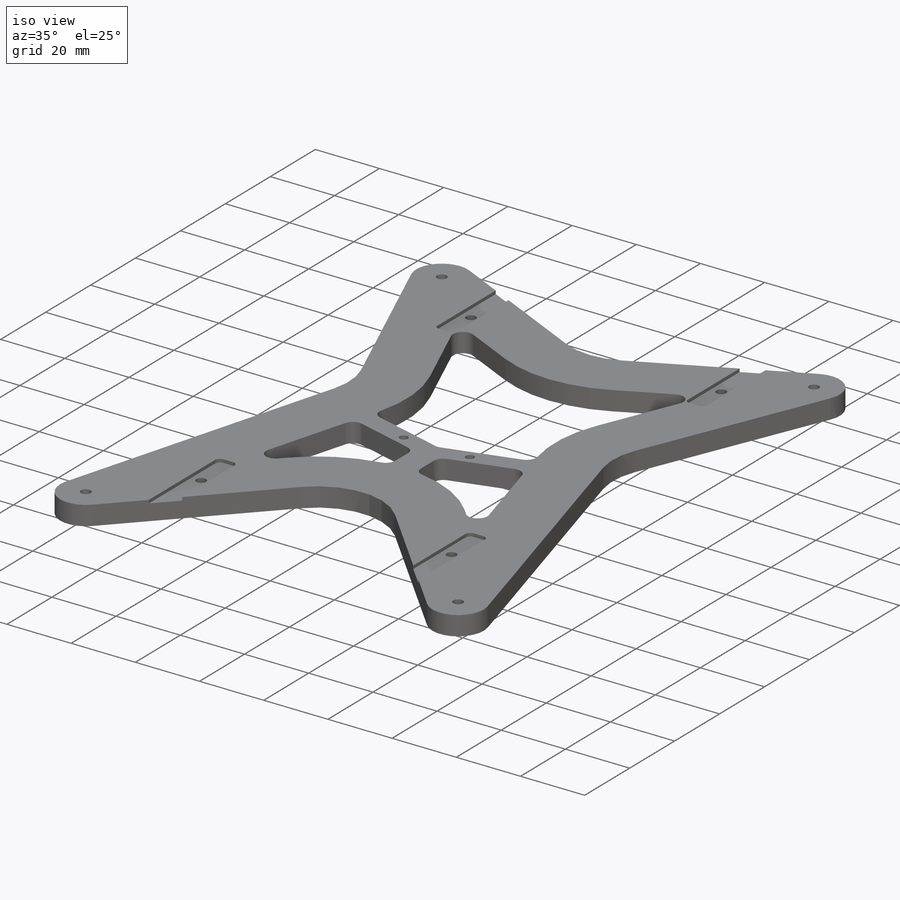
[diagram: iso view]
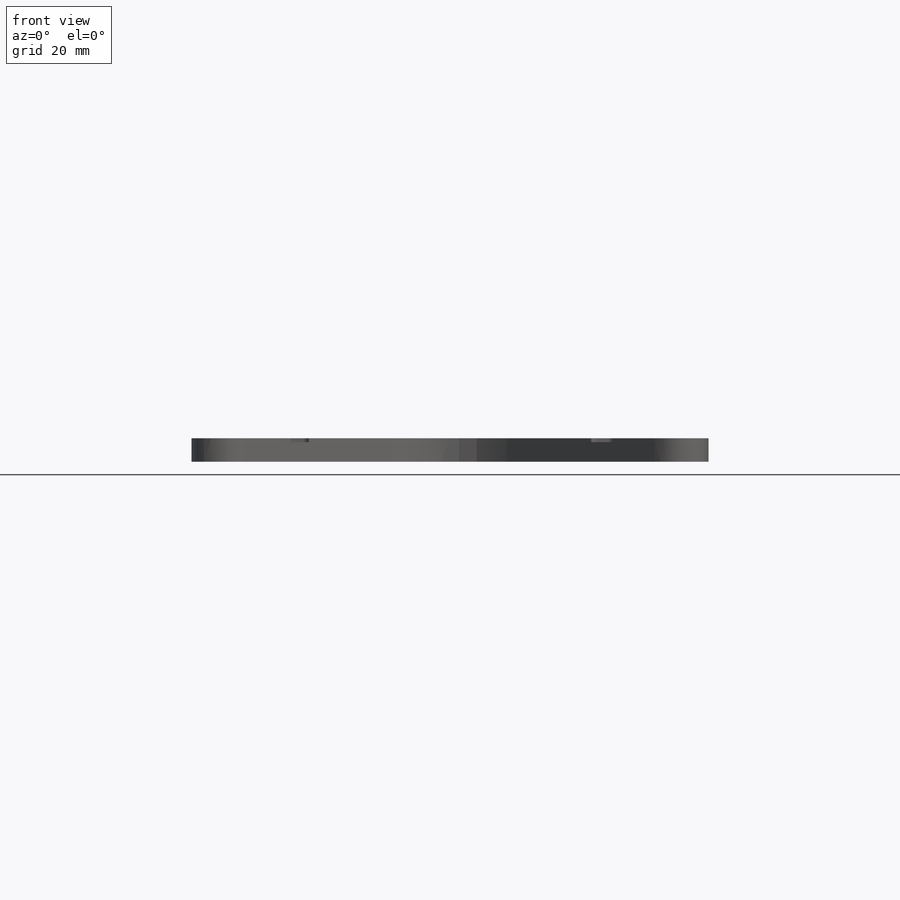
[diagram: front view]
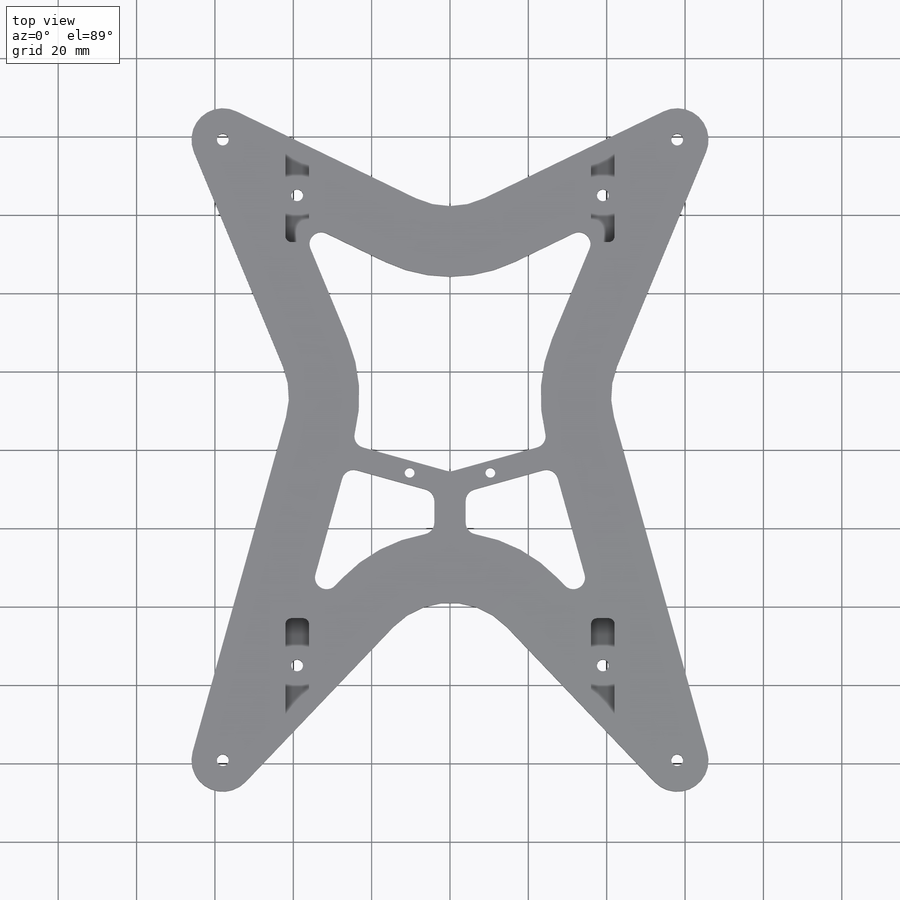
[diagram: top view]
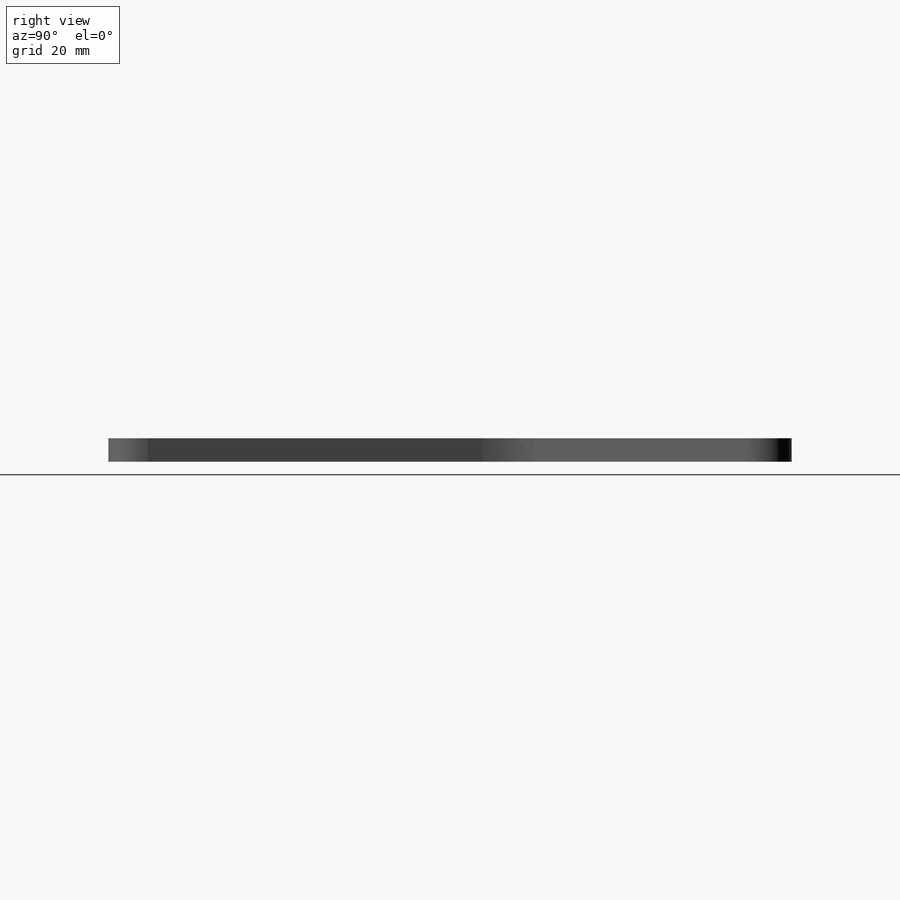
[diagram: right view]
SOLIDWORKS PART (.sldprt)
format: sldprt  version: not decoded by parser v0  size: 469,504 bytes
history: native  units: mm
features: sketch x4, fillet x3, extrude x2, cut_extrude x2, material x1 (+11 scaffold rows collapsed)
feature tree (23):
  scaffold x11  (default folders/planes/origin — collapsed)
  material  "1060 Alloy"
  sketch  "Sketch1"  dims[c1.D5=3.0mm c1.D6=100.0mm c1.D7=8.0mm c1.D12=3.0mm c1.D1=~115.25841mm c1.D2=157.68mm c1.D3=78.84mm c1.D4=~57.629205mm c1.D8=120.0mm c1.D9=78.0mm c1.D10=22.5mm c1.D11=55.0mm c1.D13=20.0mm c2.D6=45.0mm c2.D10=15.0mm c2.D13=40.0mm c2.D14=39.0mm c2.D15=20.0mm c2.D16=6.0mm c2.D17=97.0mm c2.D18=15.0mm c2.D19=~14.998297mm c2.D3=15.0mm c2.D4=15.0mm c3.D18=15.0mm c3.D19=15.0mm c3.D2=15.0mm]
  extrude  "Boss-Extrude1"  Depth=6mm
  fillet  "Fillet1"  Radius=20mm
  sketch  "Sketch2"  dims[c1.D1=~38.023389mm c1.D2=~34.210537mm c1.D3=~33.431486mm c1.D4=~33.680483mm c1.D5=5.0mm c2.D1=20.0mm c2.D2=~38.939275mm c2.D3=~36.528943mm c2.D4=~40.651724mm c3.D1=~47.036656mm c3.D2=~46.074047mm c3.D3=~58.429443mm c3.D4=15.0mm c4.D1=20.0mm c4.D2=20.0mm c4.D3=20.0mm c4.D4=20.0mm c5.D1=18.0mm]
  cut_extrude  "Cut-Extrude1"  [1 undecoded]
  sketch  "Sketch5"  dims[c1.D3=2.5mm c1.D1=16.86mm c1.D2=~21.254286mm c2.D2=90.0deg c3.D2=25.88mm c3.D4=20.6mm c3.D5=2.64mm c3.D6=2.6mm c3.D7=6.0mm c3.D8=3.0mm c3.D9=8.0mm]
  extrude  "Boss-Extrude2"  [1 undecoded]
  fillet  "Fillet2"  Radius=3mm
  sketch  "Sketch6"  dims[c1.D2=3.0mm c1.D3=3.0mm c1.D5=3.0mm c1.D1=6.0mm c2.D2=3.0mm c2.D3=3.0mm c2.D4=12.0mm c2.D5=12.0mm]
  cut_extrude  "Cut-Extrude2"  Depth=1mm
  fillet  "Fillet3"  Radius=1.5mm
decode coverage: 9 of 11 modeling features carry decoded parameters
note: ~ marks probable driven/reference dimensions
note: 2 parameter values undecoded
note: suppression state not decoded; provenance and decode notes live in map.json
